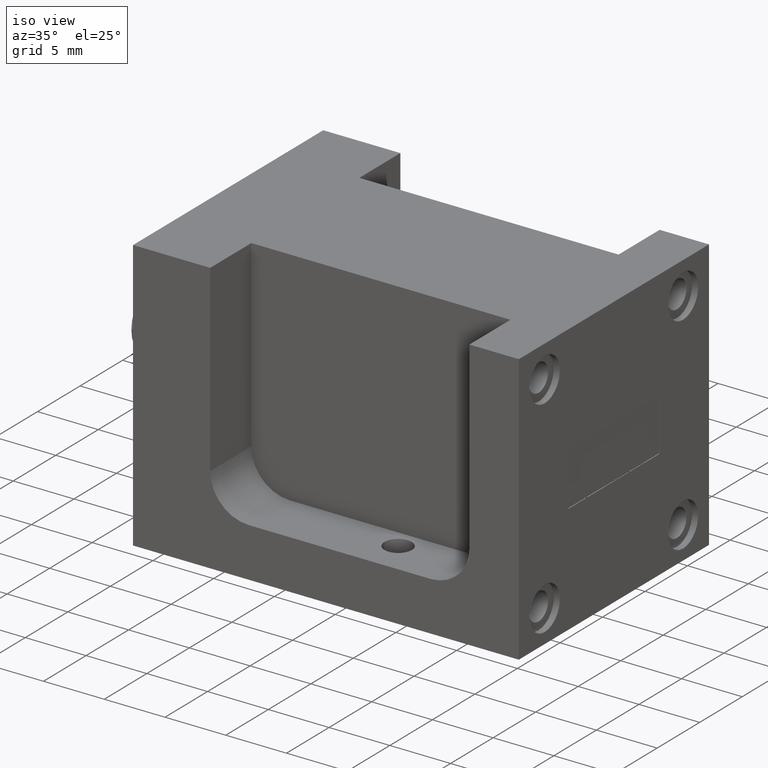
[diagram: clean part render]
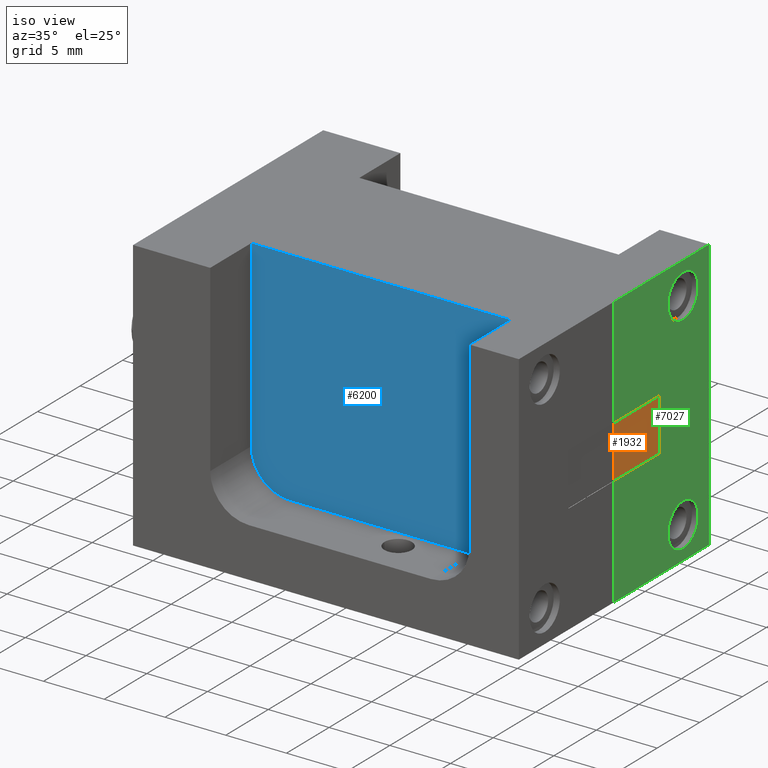
[diagram: same view with three faces highlighted in distinct colors, each labeled with its STEP entity id]
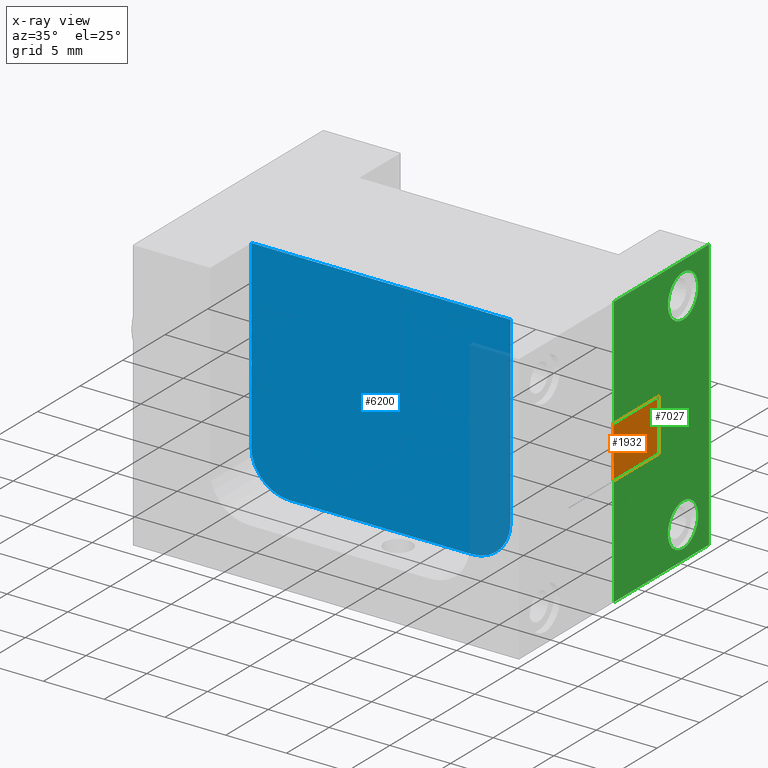
[diagram: x-ray of the same camera — body ghosted, the three highlighted faces saturated]
A machine part, iso view with three faces highlighted in distinct colors.
The next image is the same camera in x-ray (body ghosted, the three faces saturated) — at least one of them is partly hidden behind the body in this view.
Their STEP definitions:

[orange] entity #1932 — the highlighted planar face has unit normal (1, 0, 0).
#66 = LINE ( 'NONE', #2239, #6646 ) ;
#234 = DIRECTION ( 'NONE',  ( -0.0000000000000000000, 1.000000000000000000, 6.097874985857731600E-017 ) ) ;
#383 = DIRECTION ( 'NONE',  ( 0.0000000000000000000, 0.0000000000000000000, -1.000000000000000000 ) ) ;
#399 = CARTESIAN_POINT ( 'NONE',  ( 0.2033397679326660600, -0.3514438674591302500, 0.2332252380678195800 ) ) ;
#817 = DIRECTION ( 'NONE',  ( 1.000000000000000000, 0.0000000000000000000, 0.0000000000000000000 ) ) ;
#892 = VERTEX_POINT ( 'NONE', #3867 ) ;
#1410 = DIRECTION ( 'NONE',  ( -0.0000000000000000000, -2.008711760047252300E-016, 1.000000000000000000 ) ) ;
#1469 = AXIS2_PLACEMENT_3D ( 'NONE', #4287, #817, #4876 ) ;
#1932 = ADVANCED_FACE ( 'NONE', ( #7206 ), #7207, .T. ) ;
#2019 = EDGE_LOOP ( 'NONE', ( #5534, #6385, #2974, #7089 ) ) ;
#2064 = VERTEX_POINT ( 'NONE', #399 ) ;
#2239 = CARTESIAN_POINT ( 'NONE',  ( 0.2033397679326660600, -0.1414438674591302900, 0.2332252380678195800 ) ) ;
#2345 = VERTEX_POINT ( 'NONE', #6584 ) ;
#2636 = EDGE_CURVE ( 'NONE', #892, #2064, #66, .T. ) ;
#2974 = ORIENTED_EDGE ( 'NONE', *, *, #6583, .T. ) ;
#3219 = VECTOR ( 'NONE', #234, 39.37007874015748100 ) ;
#3788 = CARTESIAN_POINT ( 'NONE',  ( 0.2033397679326660600, -0.1414438674591302600, 0.06322523806781958600 ) ) ;
#3867 = CARTESIAN_POINT ( 'NONE',  ( 0.2033397679326660600, -0.1414438674591302900, 0.2332252380678195800 ) ) ;
#4019 = DIRECTION ( 'NONE',  ( 0.0000000000000000000, -1.000000000000000000, -1.626099996228728600E-016 ) ) ;
#4287 = CARTESIAN_POINT ( 'NONE',  ( 0.2033397679326660600, -0.3957219337295651600, 0.07411261903390976800 ) ) ;
#4571 = VECTOR ( 'NONE', #1410, 39.37007874015748100 ) ;
#4757 = LINE ( 'NONE', #3788, #3219 ) ;
#4876 = DIRECTION ( 'NONE',  ( 0.0000000000000000000, 0.0000000000000000000, -1.000000000000000000 ) ) ;
#5064 = CARTESIAN_POINT ( 'NONE',  ( 0.2033397679326660600, -0.3514438674591302500, 0.1482252380678194000 ) ) ;
#5358 = CARTESIAN_POINT ( 'NONE',  ( 0.2033397679326660600, -0.3514438674591302500, 0.06322523806781957200 ) ) ;
#5534 = ORIENTED_EDGE ( 'NONE', *, *, #6755, .T. ) ;
#5559 = CARTESIAN_POINT ( 'NONE',  ( 0.2033397679326660600, -0.1414438674591302900, 0.2332252380678195800 ) ) ;
#5687 = EDGE_CURVE ( 'NONE', #5863, #2345, #4757, .T. ) ;
#5863 = VERTEX_POINT ( 'NONE', #5358 ) ;
#6385 = ORIENTED_EDGE ( 'NONE', *, *, #5687, .T. ) ;
#6583 = EDGE_CURVE ( 'NONE', #2345, #892, #7147, .T. ) ;
#6584 = CARTESIAN_POINT ( 'NONE',  ( 0.2033397679326660600, -0.1414438674591302600, 0.06322523806781958600 ) ) ;
#6646 = VECTOR ( 'NONE', #4019, 39.37007874015748100 ) ;
#6691 = LINE ( 'NONE', #5064, #6774 ) ;
#6755 = EDGE_CURVE ( 'NONE', #2064, #5863, #6691, .T. ) ;
#6774 = VECTOR ( 'NONE', #383, 39.37007874015748100 ) ;
#7089 = ORIENTED_EDGE ( 'NONE', *, *, #2636, .T. ) ;
#7147 = LINE ( 'NONE', #5559, #4571 ) ;
#7206 = FACE_OUTER_BOUND ( 'NONE', #2019, .T. ) ;
#7207 = PLANE ( 'NONE',  #1469 ) ;

[blue] entity #6200 — the highlighted planar face has unit normal (0, -1, 0).
#209 = CARTESIAN_POINT ( 'NONE',  ( -0.08066023206733388700, -0.6014438674591303700, -0.1317747619321806800 ) ) ;
#278 = EDGE_CURVE ( 'NONE', #5492, #6897, #2713, .T. ) ;
#356 = VECTOR ( 'NONE', #1969, 39.37007874015748100 ) ;
#414 = ORIENTED_EDGE ( 'NONE', *, *, #1284, .T. ) ;
#547 = ORIENTED_EDGE ( 'NONE', *, *, #2755, .T. ) ;
#691 = CARTESIAN_POINT ( 'NONE',  ( 0.04433976793266607800, -0.6014438674591303700, -0.1317747619321806800 ) ) ;
#886 = LINE ( 'NONE', #1342, #2599 ) ;
#1051 = CARTESIAN_POINT ( 'NONE',  ( -0.6706602320673340500, -0.6014438674591303700, -0.006774761932180760300 ) ) ;
#1240 = DIRECTION ( 'NONE',  ( 0.0000000000000000000, -1.000000000000000000, 0.0000000000000000000 ) ) ;
#1262 = DIRECTION ( 'NONE',  ( 0.0000000000000000000, 0.0000000000000000000, -1.000000000000000000 ) ) ;
#1284 = EDGE_CURVE ( 'NONE', #6248, #6524, #4637, .T. ) ;
#1342 = CARTESIAN_POINT ( 'NONE',  ( 0.04433976793266607800, -0.6014438674591303700, 0.5882252380678194600 ) ) ;
#1892 = CARTESIAN_POINT ( 'NONE',  ( -0.08066023206733388700, -0.6014438674591303700, -0.006774761932180725600 ) ) ;
#1969 = DIRECTION ( 'NONE',  ( -0.0000000000000000000, -0.0000000000000000000, -1.000000000000000000 ) ) ;
#2288 = VERTEX_POINT ( 'NONE', #2964 ) ;
#2331 = AXIS2_PLACEMENT_3D ( 'NONE', #1892, #1240, #1262 ) ;
#2564 = CARTESIAN_POINT ( 'NONE',  ( 0.04433976793266607800, -0.6014438674591303700, -0.1317747619321806800 ) ) ;
#2599 = VECTOR ( 'NONE', #4669, 39.37007874015748100 ) ;
#2671 = ORIENTED_EDGE ( 'NONE', *, *, #5014, .T. ) ;
#2713 = LINE ( 'NONE', #5418, #356 ) ;
#2755 = EDGE_CURVE ( 'NONE', #2288, #5492, #886, .T. ) ;
#2832 = EDGE_CURVE ( 'NONE', #5111, #2288, #6731, .T. ) ;
#2914 = DIRECTION ( 'NONE',  ( 0.0000000000000000000, -0.0000000000000000000, -1.000000000000000000 ) ) ;
#2964 = CARTESIAN_POINT ( 'NONE',  ( 0.04433976793266607800, -0.6014438674591303700, 0.5882252380678194600 ) ) ;
#3245 = DIRECTION ( 'NONE',  ( 0.0000000000000000000, 0.0000000000000000000, 1.000000000000000000 ) ) ;
#3325 = CIRCLE ( 'NONE', #4403, 0.1250000000000000000 ) ;
#3370 = PLANE ( 'NONE',  #6436 ) ;
#3394 = DIRECTION ( 'NONE',  ( 0.0000000000000000000, -1.000000000000000000, 0.0000000000000000000 ) ) ;
#3557 = CARTESIAN_POINT ( 'NONE',  ( -0.6706602320673340500, -0.6014438674591303700, -0.1317747619321807700 ) ) ;
#3690 = VECTOR ( 'NONE', #3245, 39.37007874015748100 ) ;
#3808 = VECTOR ( 'NONE', #5400, 39.37007874015748100 ) ;
#3936 = CARTESIAN_POINT ( 'NONE',  ( -0.4206602320673338300, -0.6014438674591303700, 0.1482252380678195400 ) ) ;
#4125 = CIRCLE ( 'NONE', #2331, 0.1250000000000000000 ) ;
#4183 = ORIENTED_EDGE ( 'NONE', *, *, #4314, .T. ) ;
#4314 = EDGE_CURVE ( 'NONE', #6524, #5111, #4125, .T. ) ;
#4403 = AXIS2_PLACEMENT_3D ( 'NONE', #1051, #3394, #6893 ) ;
#4637 = LINE ( 'NONE', #691, #3808 ) ;
#4669 = DIRECTION ( 'NONE',  ( -1.000000000000000000, 0.0000000000000000000, 0.0000000000000000000 ) ) ;
#4833 = FACE_OUTER_BOUND ( 'NONE', #6230, .T. ) ;
#5014 = EDGE_CURVE ( 'NONE', #6897, #6248, #3325, .T. ) ;
#5111 = VERTEX_POINT ( 'NONE', #5144 ) ;
#5144 = CARTESIAN_POINT ( 'NONE',  ( 0.04433976793266607800, -0.6014438674591303700, -0.006774761932180725600 ) ) ;
#5178 = CARTESIAN_POINT ( 'NONE',  ( -0.7956602320673339400, -0.6014438674591303700, 0.5882252380678194600 ) ) ;
#5400 = DIRECTION ( 'NONE',  ( 1.000000000000000000, 0.0000000000000000000, 8.130499981143640500E-017 ) ) ;
#5418 = CARTESIAN_POINT ( 'NONE',  ( -0.7956602320673339400, -0.6014438674591303700, -0.1317747619321807700 ) ) ;
#5492 = VERTEX_POINT ( 'NONE', #5178 ) ;
#5529 = ORIENTED_EDGE ( 'NONE', *, *, #2832, .T. ) ;
#6200 = ADVANCED_FACE ( 'NONE', ( #4833 ), #3370, .T. ) ;
#6230 = EDGE_LOOP ( 'NONE', ( #6756, #2671, #414, #4183, #5529, #547 ) ) ;
#6248 = VERTEX_POINT ( 'NONE', #3557 ) ;
#6367 = CARTESIAN_POINT ( 'NONE',  ( -0.7956602320673339400, -0.6014438674591303700, -0.006774761932180760300 ) ) ;
#6436 = AXIS2_PLACEMENT_3D ( 'NONE', #3936, #7495, #2914 ) ;
#6524 = VERTEX_POINT ( 'NONE', #209 ) ;
#6731 = LINE ( 'NONE', #2564, #3690 ) ;
#6756 = ORIENTED_EDGE ( 'NONE', *, *, #278, .T. ) ;
#6893 = DIRECTION ( 'NONE',  ( 0.0000000000000000000, 0.0000000000000000000, -1.000000000000000000 ) ) ;
#6897 = VERTEX_POINT ( 'NONE', #6367 ) ;
#7495 = DIRECTION ( 'NONE',  ( 0.0000000000000000000, -1.000000000000000000, 0.0000000000000000000 ) ) ;

[green] entity #7027 — the highlighted planar face has unit normal (-1, 0, 0).
#15 = ORIENTED_EDGE ( 'NONE', *, *, #4443, .F. ) ;
#52 = VERTEX_POINT ( 'NONE', #263 ) ;
#68 = VERTEX_POINT ( 'NONE', #3216 ) ;
#155 = EDGE_LOOP ( 'NONE', ( #7455, #7456, #15, #4928, #4122, #1339, #4781, #4836 ) ) ;
#208 = VECTOR ( 'NONE', #694, 39.37007874015748100 ) ;
#263 = CARTESIAN_POINT ( 'NONE',  ( 0.2043397679326660100, -0.03144386745913033100, 0.4132252380678194100 ) ) ;
#479 = LINE ( 'NONE', #4155, #208 ) ;
#558 = DIRECTION ( 'NONE',  ( -0.0000000000000000000, 1.000000000000000000, 6.097874985857731600E-017 ) ) ;
#566 = VERTEX_POINT ( 'NONE', #1094 ) ;
#694 = DIRECTION ( 'NONE',  ( -0.0000000000000000000, -1.000000000000000000, -0.0000000000000000000 ) ) ;
#712 = DIRECTION ( 'NONE',  ( 0.0000000000000000000, -1.000000000000000000, -1.626099996228728600E-016 ) ) ;
#746 = DIRECTION ( 'NONE',  ( 0.0000000000000000000, 0.0000000000000000000, -1.000000000000000000 ) ) ;
#768 = VERTEX_POINT ( 'NONE', #4887 ) ;
#798 = EDGE_LOOP ( 'NONE', ( #7164, #2369 ) ) ;
#843 = LINE ( 'NONE', #6637, #3013 ) ;
#885 = VERTEX_POINT ( 'NONE', #7343 ) ;
#970 = LINE ( 'NONE', #3551, #6716 ) ;
#980 = EDGE_CURVE ( 'NONE', #7156, #6075, #4164, .T. ) ;
#999 = DIRECTION ( 'NONE',  ( 0.0000000000000000000, 0.0000000000000000000, -1.000000000000000000 ) ) ;
#1018 = FACE_BOUND ( 'NONE', #3576, .T. ) ;
#1040 = CIRCLE ( 'NONE', #5786, 0.07000000000000000700 ) ;
#1065 = DIRECTION ( 'NONE',  ( 0.0000000000000000000, 0.0000000000000000000, -1.000000000000000000 ) ) ;
#1085 = DIRECTION ( 'NONE',  ( -0.0000000000000000000, -1.000000000000000000, -0.0000000000000000000 ) ) ;
#1094 = CARTESIAN_POINT ( 'NONE',  ( 0.2043397679326660100, -0.03144386745913033100, -0.2567747619321806300 ) ) ;
#1192 = CARTESIAN_POINT ( 'NONE',  ( 0.2043397679326660100, -0.03144386745913033100, 0.4832252380678194200 ) ) ;
#1339 = ORIENTED_EDGE ( 'NONE', *, *, #5833, .F. ) ;
#1742 = LINE ( 'NONE', #2154, #2645 ) ;
#1758 = CARTESIAN_POINT ( 'NONE',  ( 0.2043397679326660100, -0.3514438674591302500, 0.5882252380678194600 ) ) ;
#1789 = EDGE_CURVE ( 'NONE', #566, #68, #6296, .T. ) ;
#1941 = CARTESIAN_POINT ( 'NONE',  ( 0.2043397679326660900, -0.1414438674591302900, 0.2332252380678195800 ) ) ;
#2065 = EDGE_CURVE ( 'NONE', #68, #566, #2703, .T. ) ;
#2154 = CARTESIAN_POINT ( 'NONE',  ( 0.2043397679326660100, 0.08855613254086974800, 0.5882252380678194600 ) ) ;
#2211 = EDGE_CURVE ( 'NONE', #6706, #52, #3359, .T. ) ;
#2315 = ORIENTED_EDGE ( 'NONE', *, *, #1789, .F. ) ;
#2369 = ORIENTED_EDGE ( 'NONE', *, *, #2211, .F. ) ;
#2609 = CARTESIAN_POINT ( 'NONE',  ( 0.2043397679326660100, 0.08855613254086974800, 0.5882252380678194600 ) ) ;
#2645 = VECTOR ( 'NONE', #3450, 39.37007874015748100 ) ;
#2703 = CIRCLE ( 'NONE', #5809, 0.07000000000000000700 ) ;
#2758 = CARTESIAN_POINT ( 'NONE',  ( 0.2043397679326660100, -0.03144386745913033100, -0.1867747619321806500 ) ) ;
#2823 = LINE ( 'NONE', #6339, #3646 ) ;
#2890 = ORIENTED_EDGE ( 'NONE', *, *, #2065, .F. ) ;
#2892 = AXIS2_PLACEMENT_3D ( 'NONE', #3560, #4107, #6438 ) ;
#3013 = VECTOR ( 'NONE', #712, 39.37007874015748100 ) ;
#3108 = DIRECTION ( 'NONE',  ( -0.0000000000000000000, -2.008711760047252300E-016, 1.000000000000000000 ) ) ;
#3118 = LINE ( 'NONE', #1758, #7257 ) ;
#3216 = CARTESIAN_POINT ( 'NONE',  ( 0.2043397679326660100, -0.03144386745913032400, -0.1167747619321806400 ) ) ;
#3289 = CARTESIAN_POINT ( 'NONE',  ( 0.2043397679326660100, 0.08855613254086974800, -0.2917747619321806000 ) ) ;
#3359 = CIRCLE ( 'NONE', #4489, 0.07000000000000000700 ) ;
#3450 = DIRECTION ( 'NONE',  ( 0.0000000000000000000, 0.0000000000000000000, -1.000000000000000000 ) ) ;
#3514 = VERTEX_POINT ( 'NONE', #3289 ) ;
#3551 = CARTESIAN_POINT ( 'NONE',  ( 0.2043397679326660900, -0.1414438674591302900, 0.2332252380678195800 ) ) ;
#3560 = CARTESIAN_POINT ( 'NONE',  ( 0.2043397679326660100, 0.08855613254086974800, 0.5882252380678194600 ) ) ;
#3576 = EDGE_LOOP ( 'NONE', ( #2315, #2890 ) ) ;
#3618 = DIRECTION ( 'NONE',  ( 0.0000000000000000000, 0.0000000000000000000, -1.000000000000000000 ) ) ;
#3639 = DIRECTION ( 'NONE',  ( 1.000000000000000000, 0.0000000000000000000, 0.0000000000000000000 ) ) ;
#3646 = VECTOR ( 'NONE', #558, 39.37007874015748100 ) ;
#3703 = VERTEX_POINT ( 'NONE', #4611 ) ;
#3710 = CARTESIAN_POINT ( 'NONE',  ( 0.2043397679326660100, -0.3514438674591302500, 0.5882252380678194600 ) ) ;
#4083 = PLANE ( 'NONE',  #2892 ) ;
#4107 = DIRECTION ( 'NONE',  ( -1.000000000000000000, 0.0000000000000000000, 0.0000000000000000000 ) ) ;
#4122 = ORIENTED_EDGE ( 'NONE', *, *, #4919, .T. ) ;
#4155 = CARTESIAN_POINT ( 'NONE',  ( 0.2043397679326660100, 0.08855613254086974800, -0.2917747619321806000 ) ) ;
#4164 = LINE ( 'NONE', #6821, #7605 ) ;
#4220 = CARTESIAN_POINT ( 'NONE',  ( 0.2043397679326660900, -0.1414438674591302600, 0.06322523806781958600 ) ) ;
#4319 = DIRECTION ( 'NONE',  ( 0.0000000000000000000, 0.0000000000000000000, -1.000000000000000000 ) ) ;
#4443 = EDGE_CURVE ( 'NONE', #5148, #4546, #970, .T. ) ;
#4489 = AXIS2_PLACEMENT_3D ( 'NONE', #1192, #5782, #7047 ) ;
#4546 = VERTEX_POINT ( 'NONE', #1941 ) ;
#4611 = CARTESIAN_POINT ( 'NONE',  ( 0.2043397679326660900, -0.3514438674591302500, 0.06322523806781957200 ) ) ;
#4781 = ORIENTED_EDGE ( 'NONE', *, *, #6786, .F. ) ;
#4836 = ORIENTED_EDGE ( 'NONE', *, *, #980, .T. ) ;
#4887 = CARTESIAN_POINT ( 'NONE',  ( 0.2043397679326660900, -0.3514438674591302500, 0.2332252380678195600 ) ) ;
#4919 = EDGE_CURVE ( 'NONE', #3703, #885, #5974, .T. ) ;
#4928 = ORIENTED_EDGE ( 'NONE', *, *, #6829, .F. ) ;
#5061 = CARTESIAN_POINT ( 'NONE',  ( 0.2043397679326660100, -0.3514438674591302500, 0.5882252380678194600 ) ) ;
#5148 = VERTEX_POINT ( 'NONE', #4220 ) ;
#5182 = DIRECTION ( 'NONE',  ( 1.000000000000000000, 0.0000000000000000000, 0.0000000000000000000 ) ) ;
#5419 = VECTOR ( 'NONE', #4319, 39.37007874015748100 ) ;
#5594 = EDGE_CURVE ( 'NONE', #6075, #768, #3118, .T. ) ;
#5648 = EDGE_CURVE ( 'NONE', #52, #6706, #1040, .T. ) ;
#5662 = CARTESIAN_POINT ( 'NONE',  ( 0.2043397679326660100, -0.03144386745913032400, 0.5532252380678194200 ) ) ;
#5681 = DIRECTION ( 'NONE',  ( 1.000000000000000000, 0.0000000000000000000, 0.0000000000000000000 ) ) ;
#5746 = CARTESIAN_POINT ( 'NONE',  ( 0.2043397679326660100, -0.03144386745913033100, -0.1867747619321806500 ) ) ;
#5782 = DIRECTION ( 'NONE',  ( 1.000000000000000000, 0.0000000000000000000, 0.0000000000000000000 ) ) ;
#5786 = AXIS2_PLACEMENT_3D ( 'NONE', #7163, #3639, #746 ) ;
#5809 = AXIS2_PLACEMENT_3D ( 'NONE', #2758, #5681, #999 ) ;
#5833 = EDGE_CURVE ( 'NONE', #3514, #885, #479, .T. ) ;
#5974 = LINE ( 'NONE', #3710, #5419 ) ;
#6075 = VERTEX_POINT ( 'NONE', #5061 ) ;
#6296 = CIRCLE ( 'NONE', #6460, 0.07000000000000000700 ) ;
#6339 = CARTESIAN_POINT ( 'NONE',  ( 0.2043397679326660900, -0.1414438674591302600, 0.06322523806781958600 ) ) ;
#6360 = EDGE_CURVE ( 'NONE', #4546, #768, #843, .T. ) ;
#6438 = DIRECTION ( 'NONE',  ( 0.0000000000000000000, 0.0000000000000000000, 1.000000000000000000 ) ) ;
#6460 = AXIS2_PLACEMENT_3D ( 'NONE', #5746, #5182, #1065 ) ;
#6637 = CARTESIAN_POINT ( 'NONE',  ( 0.2043397679326660900, -0.1414438674591302900, 0.2332252380678195800 ) ) ;
#6706 = VERTEX_POINT ( 'NONE', #5662 ) ;
#6716 = VECTOR ( 'NONE', #3108, 39.37007874015748100 ) ;
#6765 = FACE_BOUND ( 'NONE', #798, .T. ) ;
#6786 = EDGE_CURVE ( 'NONE', #7156, #3514, #1742, .T. ) ;
#6821 = CARTESIAN_POINT ( 'NONE',  ( 0.2043397679326660100, 0.08855613254086974800, 0.5882252380678194600 ) ) ;
#6829 = EDGE_CURVE ( 'NONE', #3703, #5148, #2823, .T. ) ;
#7027 = ADVANCED_FACE ( 'NONE', ( #1018, #6765, #7323 ), #4083, .F. ) ;
#7047 = DIRECTION ( 'NONE',  ( 0.0000000000000000000, 0.0000000000000000000, -1.000000000000000000 ) ) ;
#7156 = VERTEX_POINT ( 'NONE', #2609 ) ;
#7163 = CARTESIAN_POINT ( 'NONE',  ( 0.2043397679326660100, -0.03144386745913033100, 0.4832252380678194200 ) ) ;
#7164 = ORIENTED_EDGE ( 'NONE', *, *, #5648, .F. ) ;
#7257 = VECTOR ( 'NONE', #3618, 39.37007874015748100 ) ;
#7323 = FACE_OUTER_BOUND ( 'NONE', #155, .T. ) ;
#7343 = CARTESIAN_POINT ( 'NONE',  ( 0.2043397679326660100, -0.3514438674591302500, -0.2917747619321806000 ) ) ;
#7455 = ORIENTED_EDGE ( 'NONE', *, *, #5594, .T. ) ;
#7456 = ORIENTED_EDGE ( 'NONE', *, *, #6360, .F. ) ;
#7605 = VECTOR ( 'NONE', #1085, 39.37007874015748100 ) ;